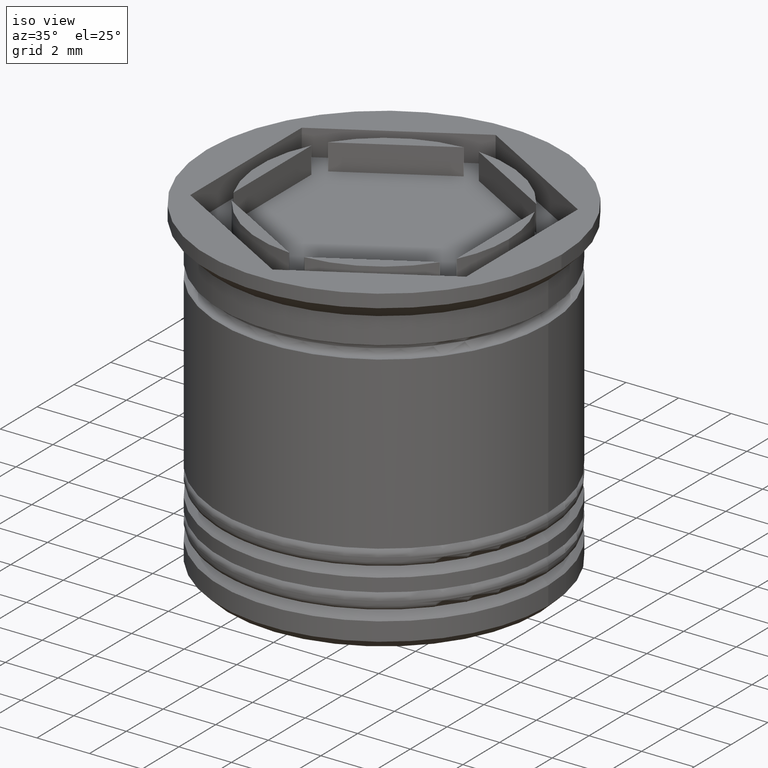
[diagram: clean part render]
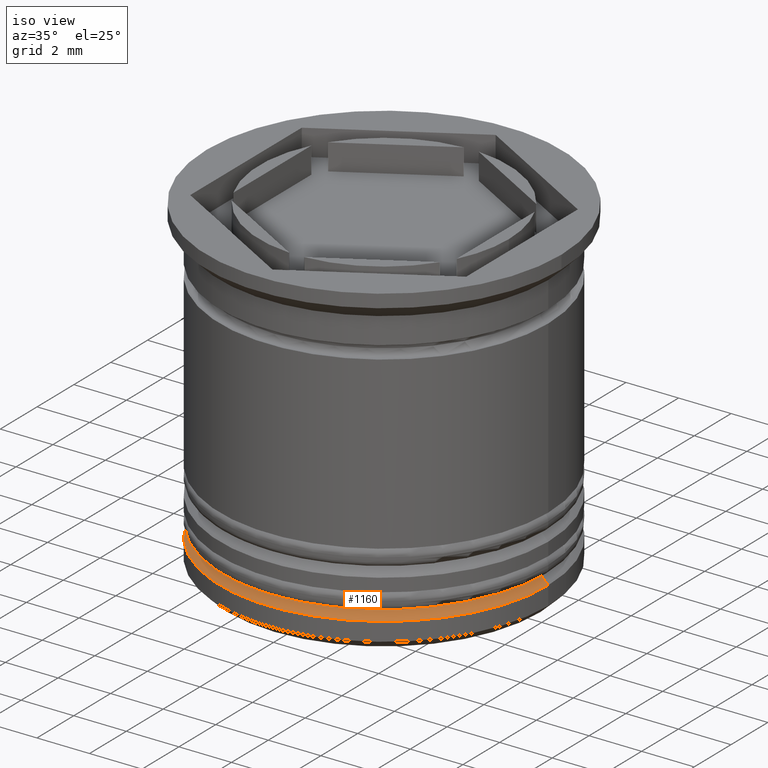
[diagram: same view with one face highlighted and labeled with its STEP entity id]
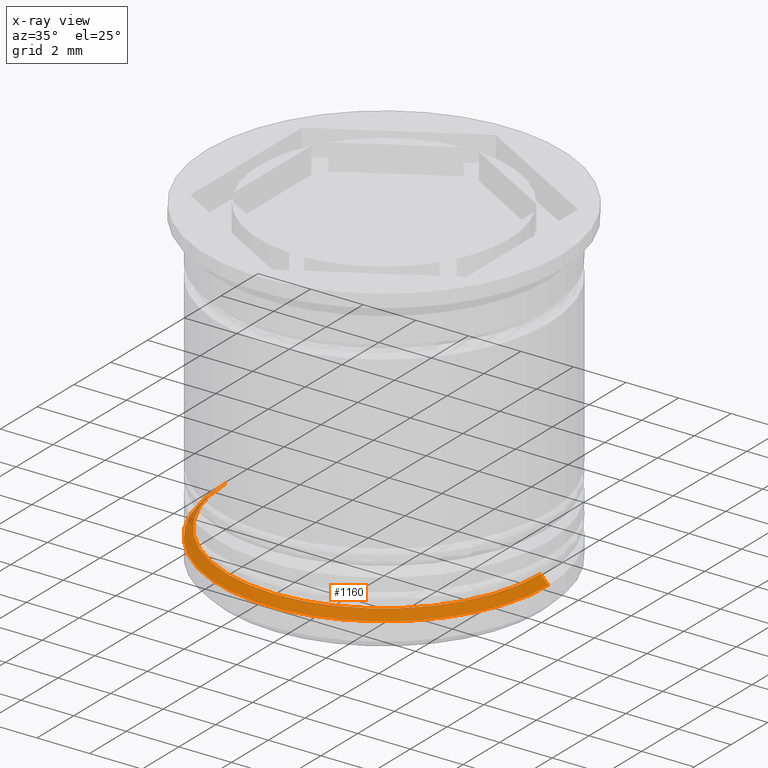
[diagram: x-ray of the same camera — body ghosted, the highlighted face saturated]
A machine part, iso view. The second image highlights one B-rep face of the part: STEP entity #1160.
The next image is the same camera in x-ray: the body ghosted, the highlighted face saturated — about 2% of this face is hidden behind the body in this view.
In plain terms, the highlighted conical surface has half-angle 45 deg.
Its self-contained STEP definition (entity closure, byte-faithful):
#109 = VERTEX_POINT ( 'NONE', #300 ) ;
#135 = DIRECTION ( 'NONE',  ( -1.000000000000000000, 0.000000000000000000, 0.000000000000000000 ) ) ;
#231 = CARTESIAN_POINT ( 'NONE',  ( 5.950000000000000178, 0.000000000000000000, -11.20000000000000995 ) ) ;
#246 = ORIENTED_EDGE ( 'NONE', *, *, #637, .F. ) ;
#300 = CARTESIAN_POINT ( 'NONE',  ( -6.250000000000000000, 7.654042494670957606E-16, -11.50000000000000711 ) ) ;
#396 = ORIENTED_EDGE ( 'NONE', *, *, #1851, .F. ) ;
#464 = DIRECTION ( 'NONE',  ( -1.000000000000000000, 0.000000000000000000, 0.000000000000000000 ) ) ;
#503 = CONICAL_SURFACE ( 'NONE', #636, 5.749999999999991118, 0.7853981633974533860 ) ;
#620 = VERTEX_POINT ( 'NONE', #1336 ) ;
#636 = AXIS2_PLACEMENT_3D ( 'NONE', #789, #1082, #464 ) ;
#637 = EDGE_CURVE ( 'NONE', #1080, #109, #1718, .T. ) ;
#707 = CARTESIAN_POINT ( 'NONE',  ( 0.000000000000000000, 0.000000000000000000, -11.20000000000000995 ) ) ;
#789 = CARTESIAN_POINT ( 'NONE',  ( 0.000000000000000000, 0.000000000000000000, -11.00000000000000355 ) ) ;
#836 = AXIS2_PLACEMENT_3D ( 'NONE', #707, #1321, #1585 ) ;
#844 = DIRECTION ( 'NONE',  ( 0.7071067811865512365, 8.659560562354978464E-17, -0.7071067811865439090 ) ) ;
#890 = EDGE_CURVE ( 'NONE', #620, #109, #1291, .T. ) ;
#926 = ORIENTED_EDGE ( 'NONE', *, *, #890, .T. ) ;
#944 = VERTEX_POINT ( 'NONE', #231 ) ;
#1080 = VERTEX_POINT ( 'NONE', #1944 ) ;
#1082 = DIRECTION ( 'NONE',  ( 0.000000000000000000, 0.000000000000000000, -1.000000000000000000 ) ) ;
#1101 = CIRCLE ( 'NONE', #836, 5.950000000000000178 ) ;
#1117 = AXIS2_PLACEMENT_3D ( 'NONE', #1552, #1518, #135 ) ;
#1160 = ADVANCED_FACE ( 'NONE', ( #1993 ), #503, .T. ) ;
#1194 = VECTOR ( 'NONE', #844, 1000.000000000000000 ) ;
#1291 = LINE ( 'NONE', #1879, #1954 ) ;
#1321 = DIRECTION ( 'NONE',  ( -0.000000000000000000, -0.000000000000000000, 1.000000000000000000 ) ) ;
#1336 = CARTESIAN_POINT ( 'NONE',  ( -5.950000000000000178, 7.286648454926751965E-16, -11.20000000000000995 ) ) ;
#1353 = EDGE_CURVE ( 'NONE', #944, #1080, #1918, .T. ) ;
#1518 = DIRECTION ( 'NONE',  ( 0.000000000000000000, 0.000000000000000000, -1.000000000000000000 ) ) ;
#1527 = ORIENTED_EDGE ( 'NONE', *, *, #1353, .F. ) ;
#1552 = CARTESIAN_POINT ( 'NONE',  ( 0.000000000000000000, 0.000000000000000000, -11.50000000000000711 ) ) ;
#1585 = DIRECTION ( 'NONE',  ( -1.000000000000000000, 0.000000000000000000, 0.000000000000000000 ) ) ;
#1718 = CIRCLE ( 'NONE', #1117, 6.250000000000000000 ) ;
#1819 = EDGE_LOOP ( 'NONE', ( #1527, #396, #926, #246 ) ) ;
#1851 = EDGE_CURVE ( 'NONE', #620, #944, #1101, .T. ) ;
#1879 = CARTESIAN_POINT ( 'NONE',  ( -5.749999999999991118, 0.000000000000000000, -11.00000000000000355 ) ) ;
#1896 = CARTESIAN_POINT ( 'NONE',  ( 5.749999999999991118, 7.041719095097270033E-16, -11.00000000000000355 ) ) ;
#1909 = DIRECTION ( 'NONE',  ( -0.7071067811865512365, 0.000000000000000000, -0.7071067811865439090 ) ) ;
#1918 = LINE ( 'NONE', #1896, #1194 ) ;
#1944 = CARTESIAN_POINT ( 'NONE',  ( 6.250000000000000000, 0.000000000000000000, -11.50000000000000711 ) ) ;
#1954 = VECTOR ( 'NONE', #1909, 1000.000000000000000 ) ;
#1993 = FACE_OUTER_BOUND ( 'NONE', #1819, .T. ) ;